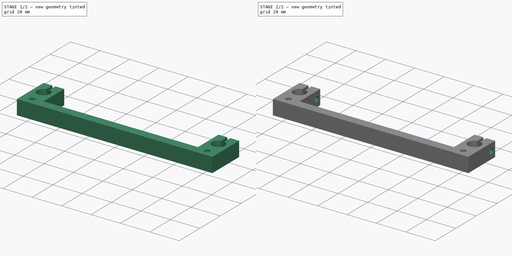
[diagram: build sequence overview — one tinted view per stage of 2, left to right]
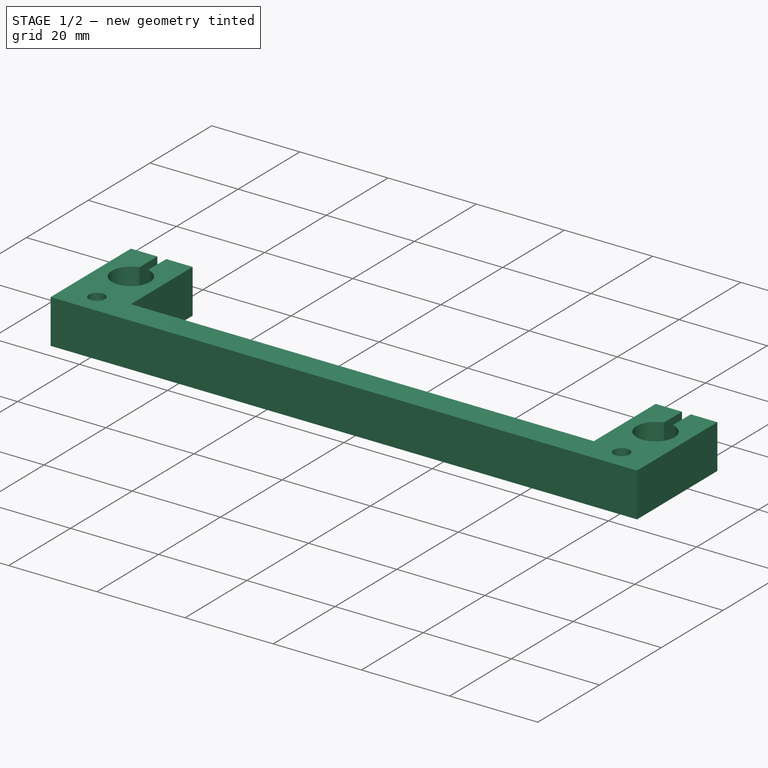
[diagram: stage 1 of 2 — iso view after this stage's code; geometry added in this stage tinted green]
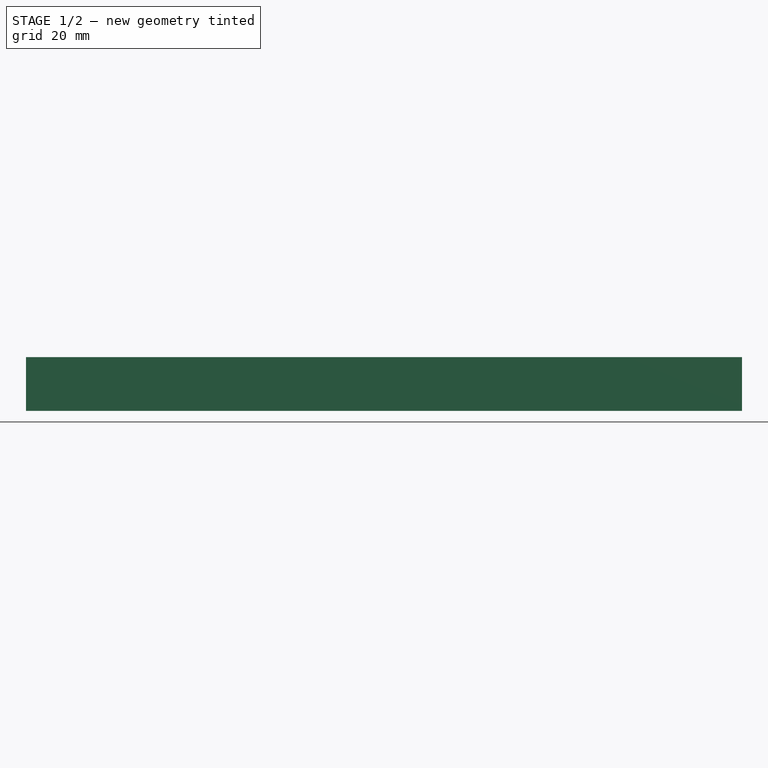
[diagram: stage 1 of 2 — front view after this stage's code; geometry added in this stage tinted green]
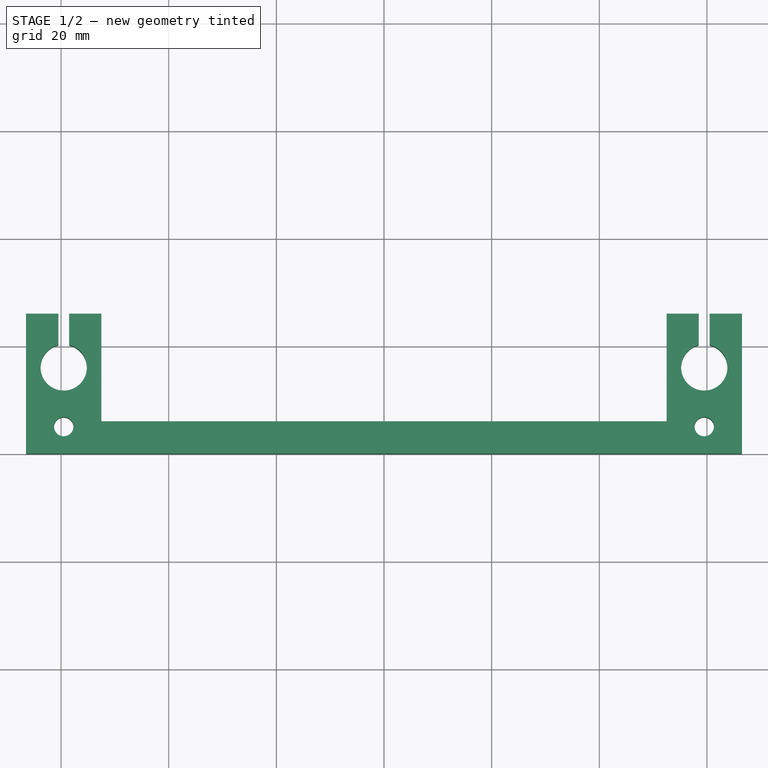
[diagram: stage 1 of 2 — top view after this stage's code; geometry added in this stage tinted green]
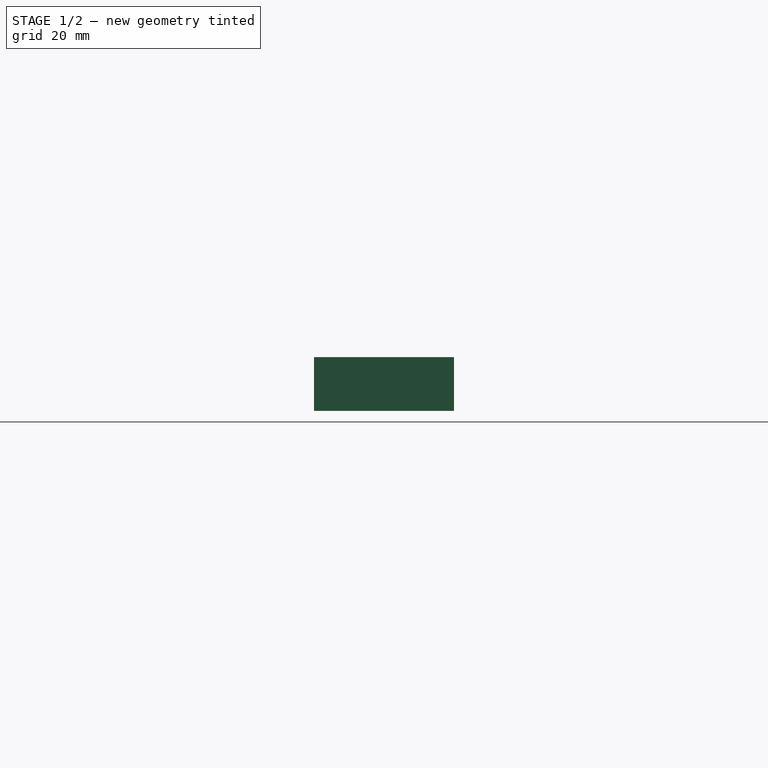
[diagram: stage 1 of 2 — right view after this stage's code; geometry added in this stage tinted green]
FCSTD DOCUMENT  (FreeCAD 0.16R6706 (Git))
Label: Presilha PlateY Direita
License: All rights reserved
LicenseURL: http://en.wikipedia.org/wiki/All_rights_reserved
objects: Sketcher::SketchObject×2, PartDesign::Pad×1, PartDesign::Pocket×1
note: 6 computed .brp shape members not serialized (recipe doc carries the construction recipe); baked Part::Feature solids carry a one-line shape summary decoded from their .brp

FEATURE [Sketcher::SketchObject] Sketch
  sketch-geometry (22):
    g0: LineSegment [constr] StartX=-59.5 StartY=16 StartZ=0 EndX=59.5 EndY=16 EndZ=0
    g1: ArcOfCircle CenterX=-59.5 CenterY=16 CenterZ=0 NormalX=0 NormalY=0 NormalZ=1 Radius=4.3 StartAngle=1.8055 EndAngle=7.61927
    g2: ArcOfCircle CenterX=59.5 CenterY=16 CenterZ=0 NormalX=0 NormalY=0 NormalZ=1 Radius=4.3 StartAngle=1.80919 EndAngle=7.62295
    g3: LineSegment StartX=-66.5 StartY=0 StartZ=0 EndX=-66.5 EndY=26 EndZ=0
    g4: LineSegment StartX=-66.5 StartY=26 StartZ=0 EndX=-60.5 EndY=26 EndZ=0
    g5: LineSegment StartX=-52.5 StartY=26 StartZ=0 EndX=-52.5 EndY=6 EndZ=0
    g6: LineSegment StartX=-52.5 StartY=6 StartZ=0 EndX=52.5 EndY=6 EndZ=0
    g7: LineSegment StartX=52.5 StartY=6 StartZ=0 EndX=52.5 EndY=26 EndZ=0
    g8: LineSegment StartX=52.5 StartY=26 StartZ=0 EndX=58.4846 EndY=26 EndZ=0
    g9: LineSegment StartX=66.5 StartY=26 StartZ=0 EndX=66.5 EndY=0 EndZ=0
    g10: LineSegment StartX=66.5 StartY=0 StartZ=0 EndX=-66.5 EndY=0 EndZ=0
    g11: LineSegment [constr] StartX=-59.5 StartY=26 StartZ=0 EndX=-59.5 EndY=16 EndZ=0
    g12: LineSegment [constr] StartX=59.5 StartY=26 StartZ=0 EndX=59.5 EndY=16 EndZ=0
    g13: LineSegment StartX=-58.5 StartY=26 StartZ=0 EndX=-58.5 EndY=20.1821 EndZ=0
    g14: LineSegment StartX=-60.5 StartY=20.1821 StartZ=0 EndX=-60.5 EndY=26 EndZ=0
    g15: LineSegment StartX=-58.5 StartY=26 StartZ=0 EndX=-52.5 EndY=26 EndZ=0
    g16: LineSegment StartX=60.4846 StartY=26 StartZ=0 EndX=60.4846 EndY=20.1858 EndZ=0
    g17: LineSegment StartX=58.4846 StartY=20.1784 StartZ=0 EndX=58.4846 EndY=26 EndZ=0
    g18: LineSegment StartX=60.4846 StartY=26 StartZ=0 EndX=66.5 EndY=26 EndZ=0
    g19: LineSegment [constr] StartX=-59.5 StartY=5 StartZ=0 EndX=59.5 EndY=5 EndZ=0
    g20: Circle CenterX=-59.5 CenterY=5 CenterZ=0 NormalX=0 NormalY=0 NormalZ=1 Radius=1.8
    g21: Circle CenterX=59.5 CenterY=5 CenterZ=0 NormalX=0 NormalY=0 NormalZ=1 Radius=1.8
  constraints (61):
    c: Horizontal(g0)
    c: DistanceX(g0,g0) = 119
    c: Radius(g1) = 4.3
    c: Equal(g1,g2) = 4.3
    c: Coincident(g1,g0)
    c: Coincident(g0,g2)
    c: Coincident(g3,g4)
    c: Coincident(g15,g5)
    c: Coincident(g6,g7)
    c: Coincident(g7,g8)
    c: Coincident(g18,g9)
    c: Coincident(g9,g10)
    c: Coincident(g3,g10)
    c: Vertical(g3)
    c: Vertical(g5)
    c: Vertical(g7)
    c: Vertical(g9)
    c: Horizontal(g4)
    c: Horizontal(g10)
    c: Horizontal(g6)
    c: Horizontal(g8)
    c: DistanceY(g9,g6) = 6
    c: DistanceY(g6,g0) = 10
    c: Equal(g9,g3)
    c: DistanceX(g8,g18) = 14
    c: Vertical(g11)
    c: DistanceY(g11,g11) = 10
    c: Coincident(g11,g0)
    c: Symmetric(g3,g15,g11)
    c: Vertical(g12)
    c: Equal(g11,g12) = 8
    c: Coincident(g0,g12)
    c: Symmetric(g7,g18,g12)
    c: Symmetric(g3,g9,g-1)
    c: Coincident(g6,g5)
    c: Vertical(g13)
    c: Vertical(g14)
    c: Coincident(g14,g1)
    c: Coincident(g13,g1)
    c: Tangent(g4,g15)
    c: Coincident(g14,g4)
    c: Coincident(g13,g15)
    c: DistanceX(g3,g5) = 14
    c: Symmetric(g1,g1,g11)
    c: DistanceX(g1,g1) = 2
    c: Vertical(g16)
    c: Vertical(g17)
    c: Tangent(g8,g18)
    c: Coincident(g16,g2)
    c: Coincident(g17,g2)
    c: Coincident(g17,g8)
    c: Coincident(g16,g18)
    c: DistanceX(g8,g16) = 2
    c: Horizontal(g19)
    c: Equal(g0,g19) = 119
    c: Symmetric(g19,g19,g-2)
    c: DistanceY(g19,g0) = 11
    c: Radius(g20) = 1.8
    c: Equal(g20,g21) = 1.8
    c: Coincident(g19,g21)
    c: Coincident(g19,g20)
FEATURE [PartDesign::Pad] Pad
  Length = 10
  Length2 = 100
  Sketch = -> Sketch
  Type = 0
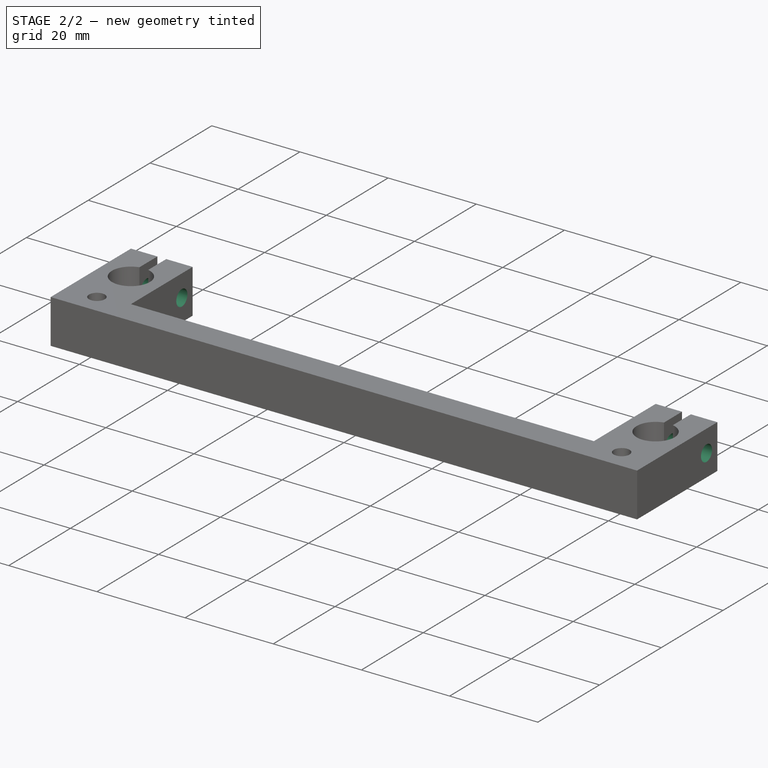
[diagram: stage 2 of 2 — iso view after this stage's code; geometry added in this stage tinted green]
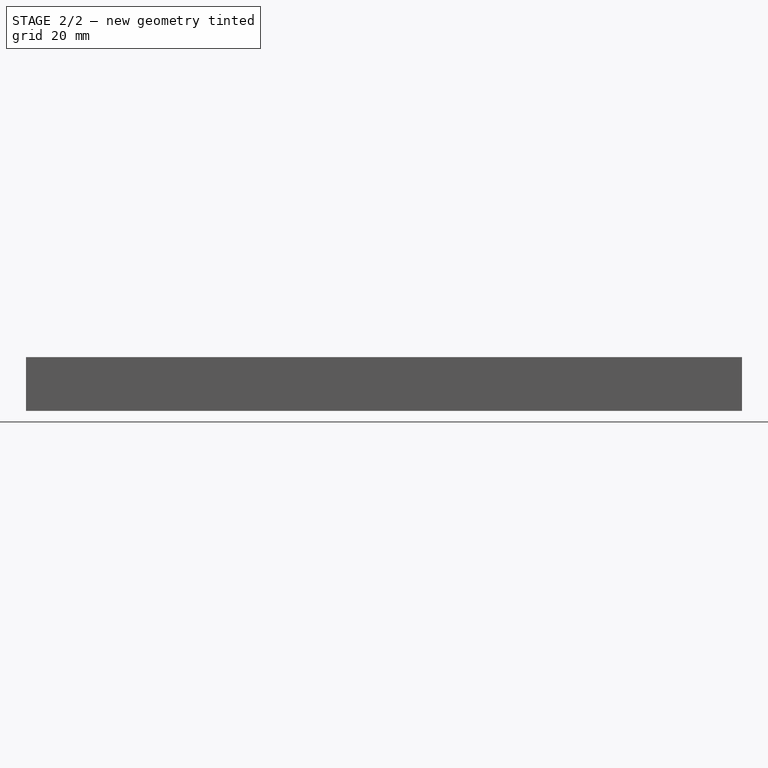
[diagram: stage 2 of 2 — front view after this stage's code; geometry added in this stage tinted green]
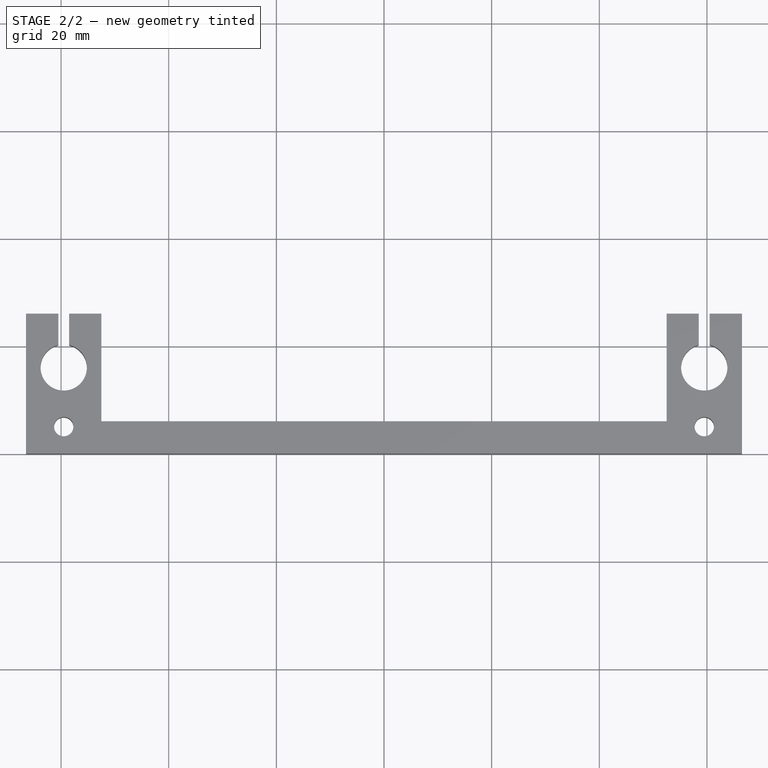
[diagram: stage 2 of 2 — top view after this stage's code; geometry added in this stage tinted green]
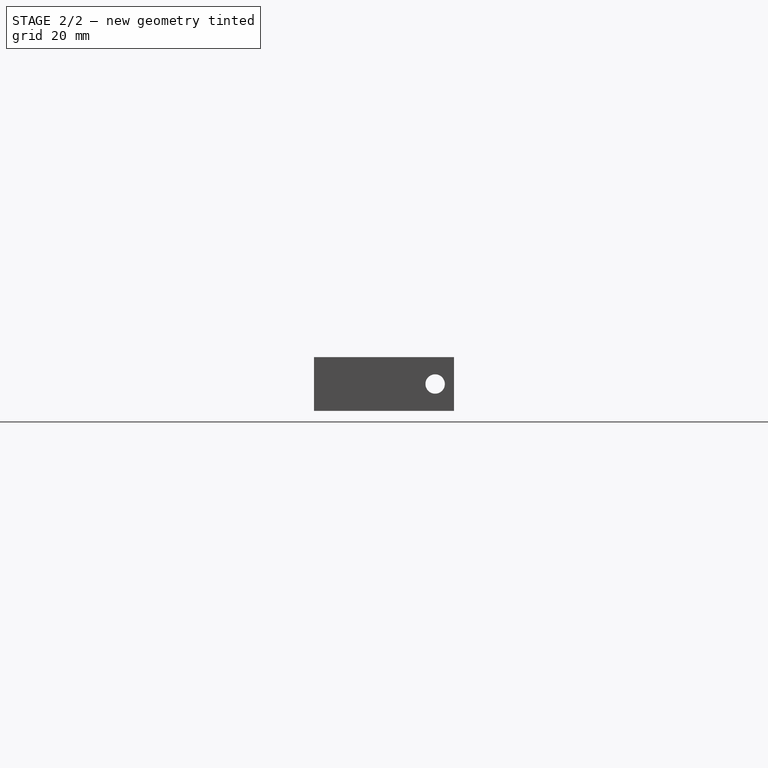
[diagram: stage 2 of 2 — right view after this stage's code; geometry added in this stage tinted green]
FEATURE [Sketcher::SketchObject] Sketch001
  ExternalGeometry = -> [Pad]
  Placement = pos=(-66.5,0,0) rot=(0.57735,-0.57735,-0.57735;2.0944rad)
  Support = -> Pad [Face4]
  sketch-geometry (2):
    g0: LineSegment [constr] StartX=-26 StartY=5 StartZ=0 EndX=-22.5 EndY=5 EndZ=0
    g1: Circle CenterX=-22.5 CenterY=5 CenterZ=0 NormalX=0 NormalY=0 NormalZ=1 Radius=1.8
  constraints (5):
    c: Horizontal(g0)
    c: DistanceX(g0,g0) = 3.5
    c: Symmetric(g-3,g-3,g0)
    c: Radius(g1) = 1.8
    c: Coincident(g0,g1)
FEATURE [PartDesign::Pocket] Pocket
  Length = 5
  Sketch = -> Sketch001
  Type = 1
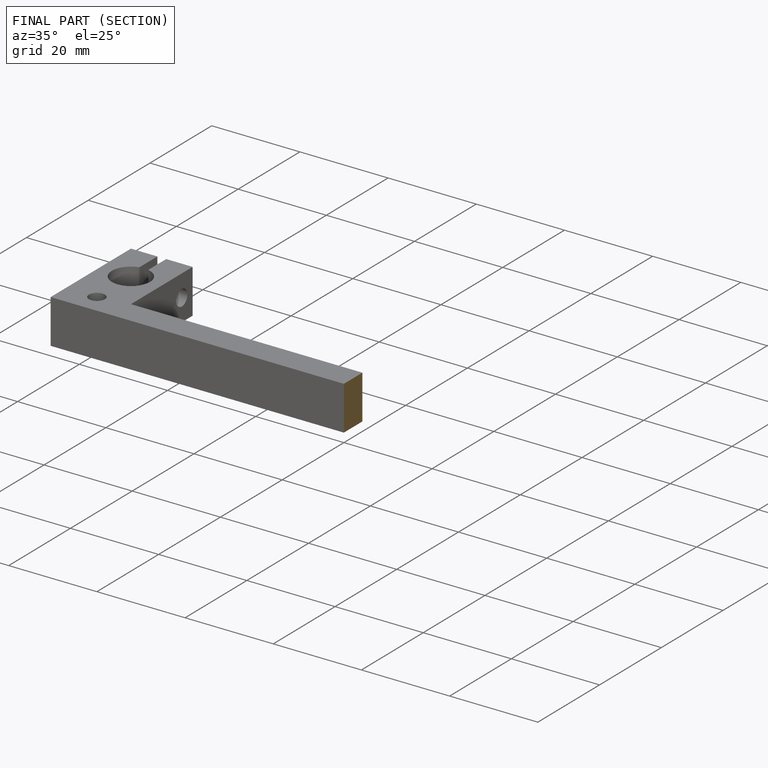
[diagram: finished part — half-section view (interior)]
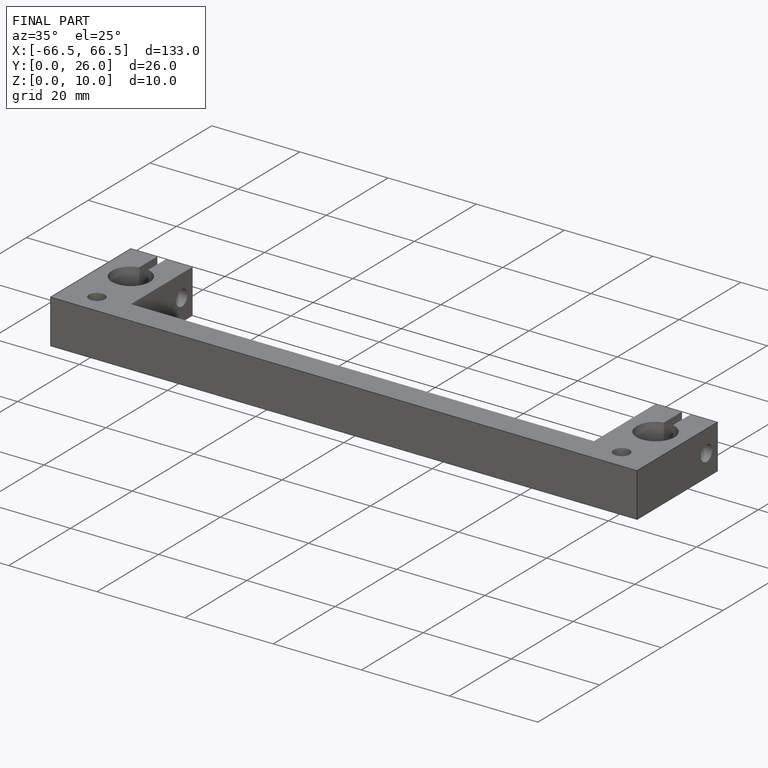
[diagram: finished part — iso view with bounding-box wireframe]
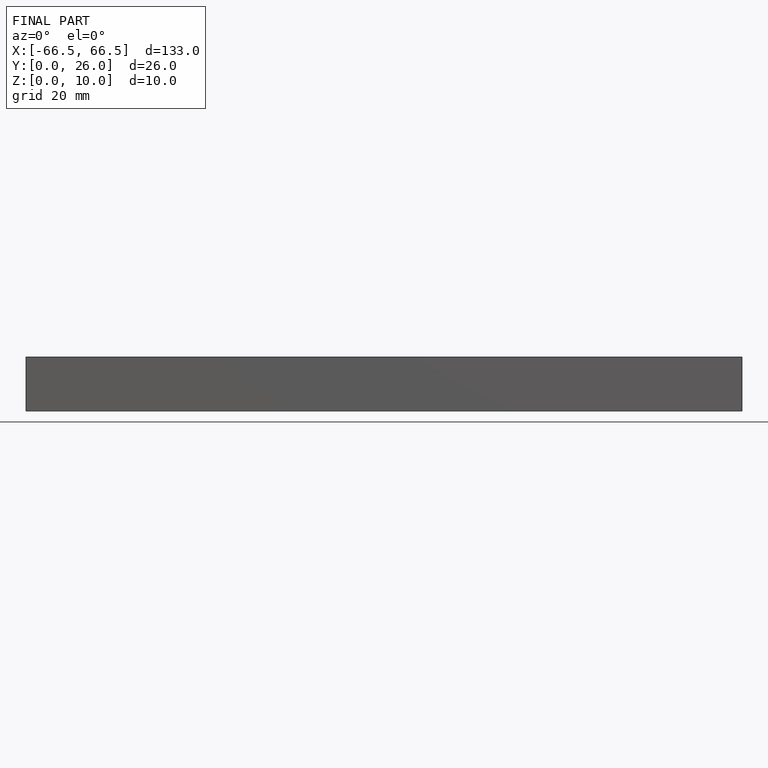
[diagram: finished part — front view with bounding-box wireframe]
